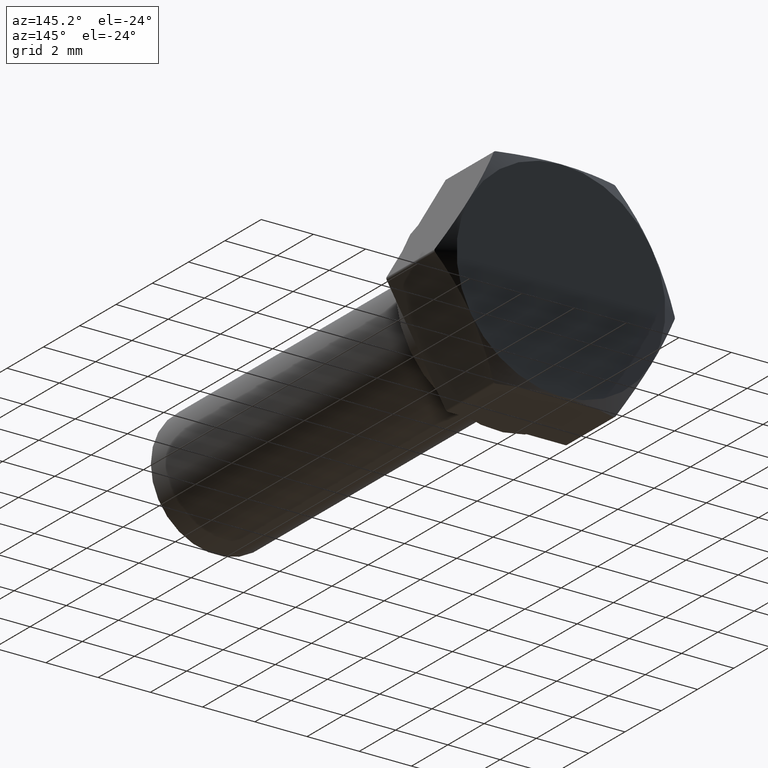
[diagram: clean part render]
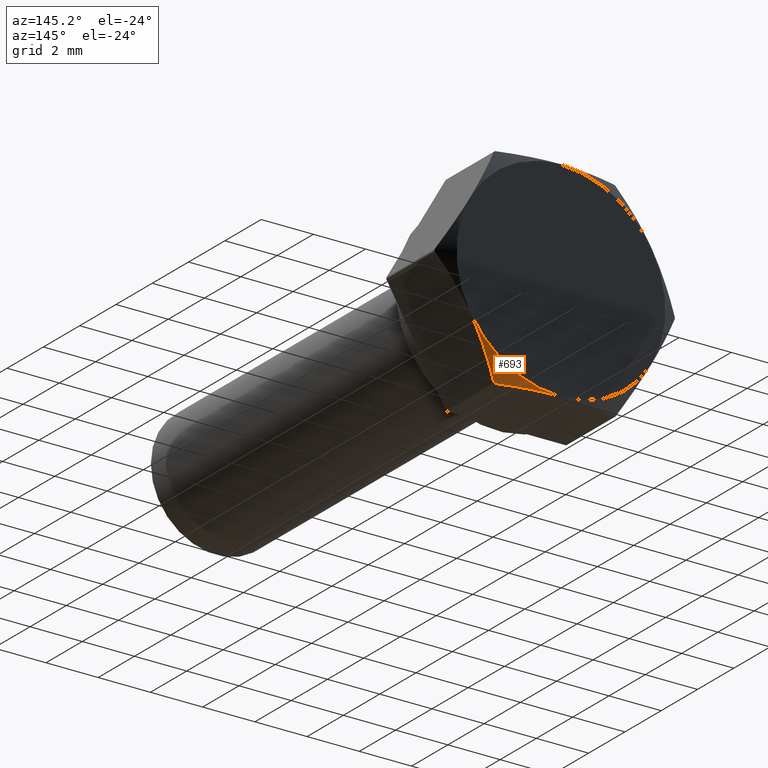
[diagram: same view with one face highlighted and labeled with its STEP entity id]
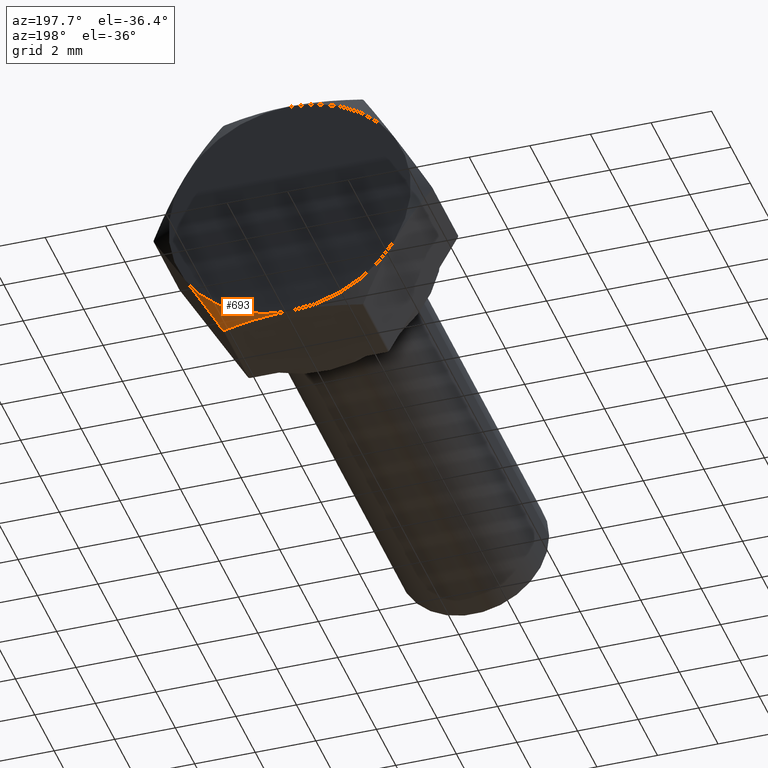
[diagram: same view with one face highlighted and labeled with its STEP entity id]
A machine part, auxiliary view. The second image highlights one B-rep face of the part: STEP entity #693.
A second angle (auxiliary view) of the same face is appended — the face is thin or edge-on in the first view.
In plain terms, the highlighted conical surface has half-angle 60 deg.
Its self-contained STEP definition (entity closure, byte-faithful):
#152 = CARTESIAN_POINT ( 'NONE',  ( 1.518298534698280688, 19.34807241956804091, -4.000000000000002665 ) ) ;
#207 = CARTESIAN_POINT ( 'NONE',  ( 0.3804273108413604998, 19.50000000000000355, -4.000000000000001776 ) ) ;
#393 = CARTESIAN_POINT ( 'NONE',  ( 0.000000000000000000, 19.50000000000000355, 0.000000000000000000 ) ) ;
#693 = ADVANCED_FACE ( 'NONE', ( #6834 ), #7855, .T. ) ;
#849 = CARTESIAN_POINT ( 'NONE',  ( 2.276027975068814158, 19.15359506883005736, -3.997460896339405156 ) ) ;
#997 = CARTESIAN_POINT ( 'NONE',  ( 2.522040190841114971, 19.26333635806575728, -3.631698250732481092 ) ) ;
#1361 = CARTESIAN_POINT ( 'NONE',  ( 0.7660223724771956233, 19.46732392810109502, -4.000000000000000888 ) ) ;
#1378 = AXIS2_PLACEMENT_3D ( 'NONE', #393, #16166, #16230 ) ;
#1583 = B_SPLINE_CURVE_WITH_KNOTS ( 'NONE', 3,
 ( #14298, #7651, #5121, #16812, #997, #12902 ),
 .UNSPECIFIED., .F., .F.,
 ( 4, 2, 4 ),
 ( 0.002336974151641544283, 0.003471266545872227823, 0.004605558940102911364 ),
 .UNSPECIFIED. ) ;
#1937 = VERTEX_POINT ( 'NONE', #9958 ) ;
#2332 = CARTESIAN_POINT ( 'NONE',  ( 2.256590741773820241, 19.15784911868536255, -4.000000000000058620 ) ) ;
#2361 = DIRECTION ( 'NONE',  ( 0.000000000000000000, 0.000000000000000000, -1.000000000000000000 ) ) ;
#2426 = VERTEX_POINT ( 'NONE', #3146 ) ;
#2540 = DIRECTION ( 'NONE',  ( -0.000000000000000000, -1.000000000000000000, -0.000000000000000000 ) ) ;
#3146 = CARTESIAN_POINT ( 'NONE',  ( 3.464101615137754830, 19.50000000000000355, -1.999999999999999556 ) ) ;
#3542 = CARTESIAN_POINT ( 'NONE',  ( 2.266536267488070244, 19.15558033995385401, -3.998888202668901659 ) ) ;
#3792 = VERTEX_POINT ( 'NONE', #13937 ) ;
#4636 = CARTESIAN_POINT ( 'NONE',  ( 2.319681166020780338, 19.15308214944647247, -3.973307189080284907 ) ) ;
#4847 = CARTESIAN_POINT ( 'NONE',  ( 2.303620167168520361, 19.15138631306106376, -3.986046173251759139 ) ) ;
#5121 = CARTESIAN_POINT ( 'NONE',  ( 3.082306257566897134, 19.46753520402895177, -2.661288957406652944 ) ) ;
#5169 = CIRCLE ( 'NONE', #15745, 4.000000000000000000 ) ;
#5624 = VERTEX_POINT ( 'NONE', #6002 ) ;
#5832 = CARTESIAN_POINT ( 'NONE',  ( 2.333387006895218274, 19.15647880637816769, -3.958455150336410266 ) ) ;
#5892 = CARTESIAN_POINT ( 'NONE',  ( 2.312285346491752325, 19.15181365926917678, -3.980169101681672927 ) ) ;
#6002 = CARTESIAN_POINT ( 'NONE',  ( -1.348231050148620140E-16, 19.50000000000000355, -4.000000000000000000 ) ) ;
#6491 = ORIENTED_EDGE ( 'NONE', *, *, #11191, .T. ) ;
#6834 = FACE_OUTER_BOUND ( 'NONE', #9843, .T. ) ;
#7651 = CARTESIAN_POINT ( 'NONE',  ( 3.273111936467171024, 19.50000000000000711, -2.330803827178701937 ) ) ;
#7855 = CONICAL_SURFACE ( 'NONE', #1378, 4.000000000000000000, 1.047197551196605847 ) ;
#7928 = B_SPLINE_CURVE_WITH_KNOTS ( 'NONE', 3,
 ( #14590, #10768, #152, #1361, #207, #10603 ),
 .UNSPECIFIED., .F., .F.,
 ( 4, 2, 4 ),
 ( 0.001752895086242819284, 0.002888724913332083206, 0.004024554740421347129 ),
 .UNSPECIFIED. ) ;
#8728 = EDGE_CURVE ( 'NONE', #2426, #3792, #1583, .T. ) ;
#8731 = CARTESIAN_POINT ( 'NONE',  ( 2.294438747111601007, 19.15185409471970601, -3.990390798027636965 ) ) ;
#9666 = ORIENTED_EDGE ( 'NONE', *, *, #8728, .T. ) ;
#9843 = EDGE_LOOP ( 'NONE', ( #9666, #15630, #10082, #6491 ) ) ;
#9958 = CARTESIAN_POINT ( 'NONE',  ( 2.251666049838054295, 19.15924384871881969, -4.000000000000001776 ) ) ;
#10082 = ORIENTED_EDGE ( 'NONE', *, *, #13605, .T. ) ;
#10097 = CARTESIAN_POINT ( 'NONE',  ( 2.261579699312797231, 19.15661704821607003, -3.999633541805085901 ) ) ;
#10235 = CARTESIAN_POINT ( 'NONE',  ( 0.000000000000000000, 19.50000000000000355, 0.000000000000000000 ) ) ;
#10603 = CARTESIAN_POINT ( 'NONE',  ( -1.348231050148620140E-16, 19.50000000000000355, -4.000000000000000000 ) ) ;
#10768 = CARTESIAN_POINT ( 'NONE',  ( 1.887363106462593532, 19.26241867935095087, -4.000000000000001776 ) ) ;
#11191 = EDGE_CURVE ( 'NONE', #5624, #2426, #5169, .T. ) ;
#11532 = CARTESIAN_POINT ( 'NONE',  ( 2.251666049838054295, 19.15924384871881969, -4.000000000000001776 ) ) ;
#12697 = CARTESIAN_POINT ( 'NONE',  ( 2.285588398829670354, 19.15230500869306240, -3.994578760475977486 ) ) ;
#12902 = CARTESIAN_POINT ( 'NONE',  ( 2.338268590218414822, 19.15924384871862785, -3.949999999999254552 ) ) ;
#13368 = EDGE_CURVE ( 'NONE', #3792, #1937, #14797, .T. ) ;
#13605 = EDGE_CURVE ( 'NONE', #1937, #5624, #7928, .T. ) ;
#13753 = CARTESIAN_POINT ( 'NONE',  ( 2.338268590218414822, 19.15924384871862785, -3.949999999999254552 ) ) ;
#13808 = CARTESIAN_POINT ( 'NONE',  ( 2.327061655701934129, 19.15434801033280365, -3.966459499659423571 ) ) ;
#13937 = CARTESIAN_POINT ( 'NONE',  ( 2.338268590218414822, 19.15924384871862785, -3.949999999999254552 ) ) ;
#14298 = CARTESIAN_POINT ( 'NONE',  ( 3.464101615137754830, 19.50000000000000355, -1.999999999999999556 ) ) ;
#14590 = CARTESIAN_POINT ( 'NONE',  ( 2.251666049838054295, 19.15924384871881969, -4.000000000000001776 ) ) ;
#14797 = B_SPLINE_CURVE_WITH_KNOTS ( 'NONE', 3,
 ( #13753, #5832, #13808, #4636, #5892, #4847, #8731, #12697, #849, #3542, #10097, #2332, #11532 ),
 .UNSPECIFIED., .F., .F.,
 ( 4, 3, 3, 3, 4 ),
 ( 2.197872223982266634E-16, 3.044148385183271366E-05, 6.098402053538118654E-05, 9.038034092211579972E-05, 0.0001055769082513780444 ),
 .UNSPECIFIED. ) ;
#15630 = ORIENTED_EDGE ( 'NONE', *, *, #13368, .T. ) ;
#15745 = AXIS2_PLACEMENT_3D ( 'NONE', #10235, #2540, #2361 ) ;
#16166 = DIRECTION ( 'NONE',  ( -0.000000000000000000, -1.000000000000000000, -0.000000000000000000 ) ) ;
#16230 = DIRECTION ( 'NONE',  ( 0.000000000000000000, 0.000000000000000000, -1.000000000000000000 ) ) ;
#16812 = CARTESIAN_POINT ( 'NONE',  ( 2.707337994946723114, 19.34900129727185458, -3.310753039490621052 ) ) ;